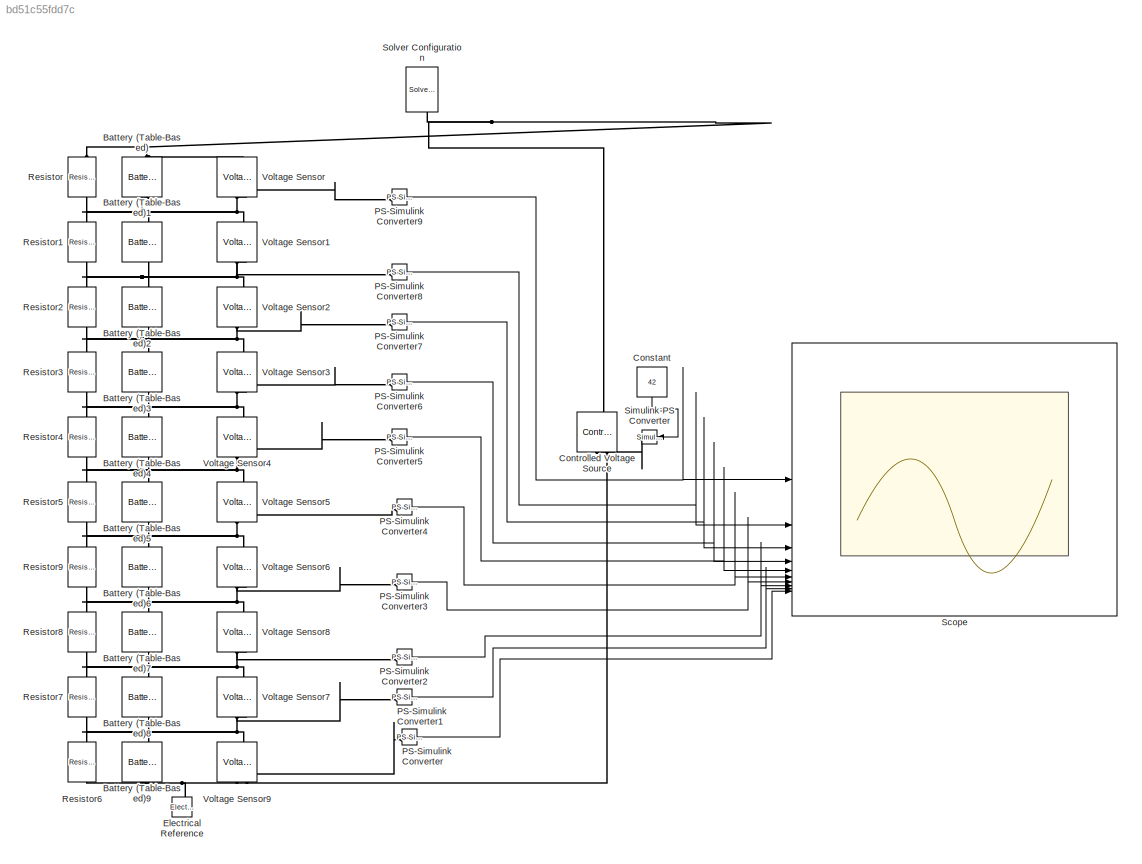
MODEL slx_bd51c55fdd7c
KIND model
CONFIG FixedStep = 1
CONFIG SolverName = FixedStepAuto
CONFIG StopTime = 10000
BLOCK [Reference] Battery (Table-Based)  REF=batteryecm_lib/Battery
(Table-Based)
  AttributesFormatString = Panasonic:NCR18650BD
  LibrarySourceBlock = batt_lib/Cells/Battery\n(Table-Based)
  NameLocation = right
  SourceBlock = batteryecm_lib/Battery\n(Table-Based)
  SourceType = Battery\n(Table-Based)
BLOCK [Reference] Battery (Table-Based)1  REF=batteryecm_lib/Battery
(Table-Based)
  AttributesFormatString = Panasonic:NCR18650BD
  LibrarySourceBlock = batt_lib/Cells/Battery\n(Table-Based)
  NameLocation = right
  SourceBlock = batteryecm_lib/Battery\n(Table-Based)
  SourceType = Battery\n(Table-Based)
BLOCK [Reference] Battery (Table-Based)2  REF=batteryecm_lib/Battery
(Table-Based)
  AttributesFormatString = Panasonic:NCR18650BD
  LibrarySourceBlock = batt_lib/Cells/Battery\n(Table-Based)
  NameLocation = right
  SourceBlock = batteryecm_lib/Battery\n(Table-Based)
  SourceType = Battery\n(Table-Based)
BLOCK [Reference] Battery (Table-Based)3  REF=batteryecm_lib/Battery
(Table-Based)
  AttributesFormatString = Panasonic:NCR18650BD
  LibrarySourceBlock = batt_lib/Cells/Battery\n(Table-Based)
  NameLocation = right
  SourceBlock = batteryecm_lib/Battery\n(Table-Based)
  SourceType = Battery\n(Table-Based)
BLOCK [Reference] Battery (Table-Based)4  REF=batteryecm_lib/Battery
(Table-Based)
  AttributesFormatString = Panasonic:NCR18650BD
  LibrarySourceBlock = batt_lib/Cells/Battery\n(Table-Based)
  NameLocation = right
  SourceBlock = batteryecm_lib/Battery\n(Table-Based)
  SourceType = Battery\n(Table-Based)
BLOCK [Reference] Battery (Table-Based)5  REF=batteryecm_lib/Battery
(Table-Based)
  AttributesFormatString = Panasonic:NCR18650BD
  LibrarySourceBlock = batt_lib/Cells/Battery\n(Table-Based)
  NameLocation = right
  SourceBlock = batteryecm_lib/Battery\n(Table-Based)
  SourceType = Battery\n(Table-Based)
BLOCK [Reference] Battery (Table-Based)6  REF=batteryecm_lib/Battery
(Table-Based)
  AttributesFormatString = Panasonic:NCR18650BD
  LibrarySourceBlock = batt_lib/Cells/Battery\n(Table-Based)
  NameLocation = right
  SourceBlock = batteryecm_lib/Battery\n(Table-Based)
  SourceType = Battery\n(Table-Based)
BLOCK [Reference] Battery (Table-Based)7  REF=batteryecm_lib/Battery
(Table-Based)
  AttributesFormatString = Panasonic:NCR18650BD
  LibrarySourceBlock = batt_lib/Cells/Battery\n(Table-Based)
  NameLocation = right
  SourceBlock = batteryecm_lib/Battery\n(Table-Based)
  SourceType = Battery\n(Table-Based)
BLOCK [Reference] Battery (Table-Based)8  REF=batteryecm_lib/Battery
(Table-Based)
  AttributesFormatString = Panasonic:NCR18650BD
  LibrarySourceBlock = batt_lib/Cells/Battery\n(Table-Based)
  NameLocation = right
  SourceBlock = batteryecm_lib/Battery\n(Table-Based)
  SourceType = Battery\n(Table-Based)
BLOCK [Reference] Battery (Table-Based)9  REF=batteryecm_lib/Battery
(Table-Based)
  AttributesFormatString = Panasonic:NCR18650BD
  LibrarySourceBlock = batt_lib/Cells/Battery\n(Table-Based)
  NameLocation = right
  SourceBlock = batteryecm_lib/Battery\n(Table-Based)
  SourceType = Battery\n(Table-Based)
BLOCK [Constant] Constant
  NameLocation = left
  Value = 42
BLOCK [Reference] Controlled Voltage Source  REF=fl_lib/Electrical/Electrical Sources/Controlled Voltage
Source
  NameLocation = right
  SourceBlock = fl_lib/Electrical/Electrical Sources/Controlled Voltage\nSource
  SourceType = Controlled Voltage\nSource
BLOCK [Reference] Electrical Reference  REF=fl_lib/Electrical/Electrical Elements/Electrical Reference
  NameLocation = right
  SourceBlock = fl_lib/Electrical/Electrical Elements/Electrical Reference
  SourceType = Electrical Reference
BLOCK [Reference] PS-Simulink Converter  REF=nesl_utility/PS-Simulink
Converter
  SourceBlock = nesl_utility/PS-Simulink\nConverter
  SourceType = PS-Simulink\nConverter
BLOCK [Reference] PS-Simulink Converter1  REF=nesl_utility/PS-Simulink
Converter
  SourceBlock = nesl_utility/PS-Simulink\nConverter
  SourceType = PS-Simulink\nConverter
BLOCK [Reference] PS-Simulink Converter2  REF=nesl_utility/PS-Simulink
Converter
  SourceBlock = nesl_utility/PS-Simulink\nConverter
  SourceType = PS-Simulink\nConverter
BLOCK [Reference] PS-Simulink Converter3  REF=nesl_utility/PS-Simulink
Converter
  SourceBlock = nesl_utility/PS-Simulink\nConverter
  SourceType = PS-Simulink\nConverter
BLOCK [Reference] PS-Simulink Converter4  REF=nesl_utility/PS-Simulink
Converter
  SourceBlock = nesl_utility/PS-Simulink\nConverter
  SourceType = PS-Simulink\nConverter
BLOCK [Reference] PS-Simulink Converter5  REF=nesl_utility/PS-Simulink
Converter
  SourceBlock = nesl_utility/PS-Simulink\nConverter
  SourceType = PS-Simulink\nConverter
BLOCK [Reference] PS-Simulink Converter6  REF=nesl_utility/PS-Simulink
Converter
  SourceBlock = nesl_utility/PS-Simulink\nConverter
  SourceType = PS-Simulink\nConverter
BLOCK [Reference] PS-Simulink Converter7  REF=nesl_utility/PS-Simulink
Converter
  SourceBlock = nesl_utility/PS-Simulink\nConverter
  SourceType = PS-Simulink\nConverter
BLOCK [Reference] PS-Simulink Converter8  REF=nesl_utility/PS-Simulink
Converter
  SourceBlock = nesl_utility/PS-Simulink\nConverter
  SourceType = PS-Simulink\nConverter
BLOCK [Reference] PS-Simulink Converter9  REF=nesl_utility/PS-Simulink
Converter
  SourceBlock = nesl_utility/PS-Simulink\nConverter
  SourceType = PS-Simulink\nConverter
BLOCK [Reference] Resistor  REF=fl_lib/Electrical/Electrical Elements/Resistor
  NameLocation = left
  SourceBlock = fl_lib/Electrical/Electrical Elements/Resistor
  SourceType = Resistor
BLOCK [Reference] Resistor1  REF=fl_lib/Electrical/Electrical Elements/Resistor
  NameLocation = left
  SourceBlock = fl_lib/Electrical/Electrical Elements/Resistor
  SourceType = Resistor
BLOCK [Reference] Resistor2  REF=fl_lib/Electrical/Electrical Elements/Resistor
  NameLocation = left
  SourceBlock = fl_lib/Electrical/Electrical Elements/Resistor
  SourceType = Resistor
BLOCK [Reference] Resistor3  REF=fl_lib/Electrical/Electrical Elements/Resistor
  NameLocation = left
  SourceBlock = fl_lib/Electrical/Electrical Elements/Resistor
  SourceType = Resistor
BLOCK [Reference] Resistor4  REF=fl_lib/Electrical/Electrical Elements/Resistor
  NameLocation = left
  SourceBlock = fl_lib/Electrical/Electrical Elements/Resistor
  SourceType = Resistor
BLOCK [Reference] Resistor5  REF=fl_lib/Electrical/Electrical Elements/Resistor
  NameLocation = left
  SourceBlock = fl_lib/Electrical/Electrical Elements/Resistor
  SourceType = Resistor
BLOCK [Reference] Resistor6  REF=fl_lib/Electrical/Electrical Elements/Resistor
  NameLocation = left
  SourceBlock = fl_lib/Electrical/Electrical Elements/Resistor
  SourceType = Resistor
BLOCK [Reference] Resistor7  REF=fl_lib/Electrical/Electrical Elements/Resistor
  NameLocation = left
  SourceBlock = fl_lib/Electrical/Electrical Elements/Resistor
  SourceType = Resistor
BLOCK [Reference] Resistor8  REF=fl_lib/Electrical/Electrical Elements/Resistor
  NameLocation = left
  SourceBlock = fl_lib/Electrical/Electrical Elements/Resistor
  SourceType = Resistor
BLOCK [Reference] Resistor9  REF=fl_lib/Electrical/Electrical Elements/Resistor
  NameLocation = left
  SourceBlock = fl_lib/Electrical/Electrical Elements/Resistor
  SourceType = Resistor
BLOCK [Scope] Scope
  ActiveDisplayYMaximum = 4.2048806003497958
  ActiveDisplayYMinimum = 4.1370214434833485
  Floating = off
  GraphicalSettings = {"AxesScalingProperties":{"AlignXAxis":"Center","AlignYAxis":"Center","AutoScaleXAxisLimits":false,"AxesScaling":"Manual","AxesScalingNumUpdates":10,"ExpandOnly":true,"ScaleAxesLimitsAtStop":false,"XAxisDataRange":100,"YAxisDataRange":100},"DisplayProperties":{"ColorOrder":["auto","auto","auto","auto","auto","auto","auto","auto","auto","auto","auto","auto","auto","auto","auto","auto","auto","auto"...<+6389ch>
  LayoutDimensionsString = [2,5]
  MultipleDisplayCache = [{"MaxYLimMag":4.2048806003497958,"MaxYLimReal":4.2048806003497958,"MinYLimMag":4.1370214434833485,"MinYLimReal":4.1370214434833485,"PlotAsMagnitudePhase":false,"ShowGrid":true,"ShowLegend":false,"Title":"%<SignalLabel>","YLabel":""},{"MaxYLimMag":4.2044064849367189,"MaxYLimReal":4.2044064849367189,"MinYLimMag":4.1500469388438717,"MinYLimReal":4.1500469388438717,"PlotAsMagnitudePhase":false,"ShowG...<+1925ch>
  NumInputPorts = 10
  ScopeFrameLocation = window
  WasSavedAsWebScope = on
  WindowPosition = [1921.000000,49.000000,1920.000000,1009.000000,]
BLOCK [Reference] Simulink-PS Converter  REF=nesl_utility/Simulink-PS
Converter
  NameLocation = top
  SourceBlock = nesl_utility/Simulink-PS\nConverter
  SourceType = Simulink-PS\nConverter
BLOCK [Reference] Solver Configuration  REF=nesl_utility/Solver
Configuration
  NameLocation = left
  SourceBlock = nesl_utility/Solver\nConfiguration
  SourceType = Solver\nConfiguration
BLOCK [Reference] Voltage Sensor  REF=fl_lib/Electrical/Electrical Sensors/Voltage Sensor
  NameLocation = right
  SourceBlock = fl_lib/Electrical/Electrical Sensors/Voltage Sensor
  SourceType = Voltage Sensor
BLOCK [Reference] Voltage Sensor1  REF=fl_lib/Electrical/Electrical Sensors/Voltage Sensor
  NameLocation = right
  SourceBlock = fl_lib/Electrical/Electrical Sensors/Voltage Sensor
  SourceType = Voltage Sensor
BLOCK [Reference] Voltage Sensor2  REF=fl_lib/Electrical/Electrical Sensors/Voltage Sensor
  NameLocation = right
  SourceBlock = fl_lib/Electrical/Electrical Sensors/Voltage Sensor
  SourceType = Voltage Sensor
BLOCK [Reference] Voltage Sensor3  REF=fl_lib/Electrical/Electrical Sensors/Voltage Sensor
  NameLocation = right
  SourceBlock = fl_lib/Electrical/Electrical Sensors/Voltage Sensor
  SourceType = Voltage Sensor
BLOCK [Reference] Voltage Sensor4  REF=fl_lib/Electrical/Electrical Sensors/Voltage Sensor
  NameLocation = right
  SourceBlock = fl_lib/Electrical/Electrical Sensors/Voltage Sensor
  SourceType = Voltage Sensor
BLOCK [Reference] Voltage Sensor5  REF=fl_lib/Electrical/Electrical Sensors/Voltage Sensor
  NameLocation = right
  SourceBlock = fl_lib/Electrical/Electrical Sensors/Voltage Sensor
  SourceType = Voltage Sensor
BLOCK [Reference] Voltage Sensor6  REF=fl_lib/Electrical/Electrical Sensors/Voltage Sensor
  NameLocation = right
  SourceBlock = fl_lib/Electrical/Electrical Sensors/Voltage Sensor
  SourceType = Voltage Sensor
BLOCK [Reference] Voltage Sensor7  REF=fl_lib/Electrical/Electrical Sensors/Voltage Sensor
  NameLocation = right
  SourceBlock = fl_lib/Electrical/Electrical Sensors/Voltage Sensor
  SourceType = Voltage Sensor
BLOCK [Reference] Voltage Sensor8  REF=fl_lib/Electrical/Electrical Sensors/Voltage Sensor
  NameLocation = right
  SourceBlock = fl_lib/Electrical/Electrical Sensors/Voltage Sensor
  SourceType = Voltage Sensor
BLOCK [Reference] Voltage Sensor9  REF=fl_lib/Electrical/Electrical Sensors/Voltage Sensor
  NameLocation = right
  SourceBlock = fl_lib/Electrical/Electrical Sensors/Voltage Sensor
  SourceType = Voltage Sensor
LINE Constant:1 -> Simulink-PS Converter:1
LINE PS-Simulink Converter1:1 -> Scope:9
LINE PS-Simulink Converter2:1 -> Scope:8
LINE PS-Simulink Converter3:1 -> Scope:7
LINE PS-Simulink Converter4:1 -> Scope:6
LINE PS-Simulink Converter5:1 -> Scope:5
LINE PS-Simulink Converter6:1 -> Scope:4
LINE PS-Simulink Converter7:1 -> Scope:3
LINE PS-Simulink Converter8:1 -> Scope:2
LINE PS-Simulink Converter9:1 -> Scope:1
LINE PS-Simulink Converter:1 -> Scope:10
PNET net1: Battery (Table-Based)1:LConn1 -- Battery (Table-Based):RConn1 -- Resistor1:LConn1 -- Resistor:RConn1 -- Voltage Sensor1:LConn1 -- Voltage Sensor:RConn2
PNET net2: Battery (Table-Based)1:RConn1 -- Battery (Table-Based)2:LConn1 -- Resistor1:RConn1 -- Resistor2:LConn1 -- Voltage Sensor1:RConn2 -- Voltage Sensor2:LConn1
PNET net3: Battery (Table-Based)2:RConn1 -- Battery (Table-Based)3:LConn1 -- Resistor2:RConn1 -- Resistor3:LConn1 -- Voltage Sensor2:RConn2 -- Voltage Sensor3:LConn1
PNET net4: Battery (Table-Based)3:RConn1 -- Battery (Table-Based)4:LConn1 -- Resistor3:RConn1 -- Resistor4:LConn1 -- Voltage Sensor3:RConn2 -- Voltage Sensor4:LConn1
PNET net5: Battery (Table-Based)4:RConn1 -- Battery (Table-Based)5:LConn1 -- Resistor4:RConn1 -- Resistor5:LConn1 -- Voltage Sensor4:RConn2 -- Voltage Sensor5:LConn1
PNET net6: Battery (Table-Based)5:RConn1 -- Battery (Table-Based)6:LConn1 -- Resistor5:RConn1 -- Resistor9:LConn1 -- Voltage Sensor5:RConn2 -- Voltage Sensor6:LConn1
PNET net7: Battery (Table-Based)6:RConn1 -- Battery (Table-Based)7:LConn1 -- Resistor8:LConn1 -- Resistor9:RConn1 -- Voltage Sensor6:RConn2 -- Voltage Sensor8:LConn1
PNET net8: Battery (Table-Based)7:RConn1 -- Battery (Table-Based)8:LConn1 -- Resistor7:LConn1 -- Resistor8:RConn1 -- Voltage Sensor7:LConn1 -- Voltage Sensor8:RConn2
PNET net9: Battery (Table-Based)8:RConn1 -- Battery (Table-Based)9:LConn1 -- Resistor6:LConn1 -- Resistor7:RConn1 -- Voltage Sensor7:RConn2 -- Voltage Sensor9:LConn1
PNET net10: Battery (Table-Based)9:RConn1 -- Controlled Voltage Source:RConn2 -- Electrical Reference:LConn1 -- Resistor6:RConn1 -- Voltage Sensor9:RConn2
PNET net11: Battery (Table-Based):LConn1 -- Controlled Voltage Source:LConn1 -- Resistor:LConn1 -- Solver Configuration:RConn1 -- Voltage Sensor:LConn1
PLINE Controlled Voltage Source:RConn1 -- Simulink-PS Converter:RConn1
PLINE PS-Simulink Converter1:LConn1 -- Voltage Sensor7:RConn1
PLINE PS-Simulink Converter2:LConn1 -- Voltage Sensor8:RConn1
PLINE PS-Simulink Converter3:LConn1 -- Voltage Sensor6:RConn1
PLINE PS-Simulink Converter4:LConn1 -- Voltage Sensor5:RConn1
PLINE PS-Simulink Converter5:LConn1 -- Voltage Sensor4:RConn1
PLINE PS-Simulink Converter6:LConn1 -- Voltage Sensor3:RConn1
PLINE PS-Simulink Converter7:LConn1 -- Voltage Sensor2:RConn1
PLINE PS-Simulink Converter8:LConn1 -- Voltage Sensor1:RConn1
PLINE PS-Simulink Converter9:LConn1 -- Voltage Sensor:RConn1
PLINE PS-Simulink Converter:LConn1 -- Voltage Sensor9:RConn1
note: PNET lines group multi-terminal physical nets as a canonical sorted terminal list (undirected conserving connections); 2-terminal nets keep the pairwise PLINE form
